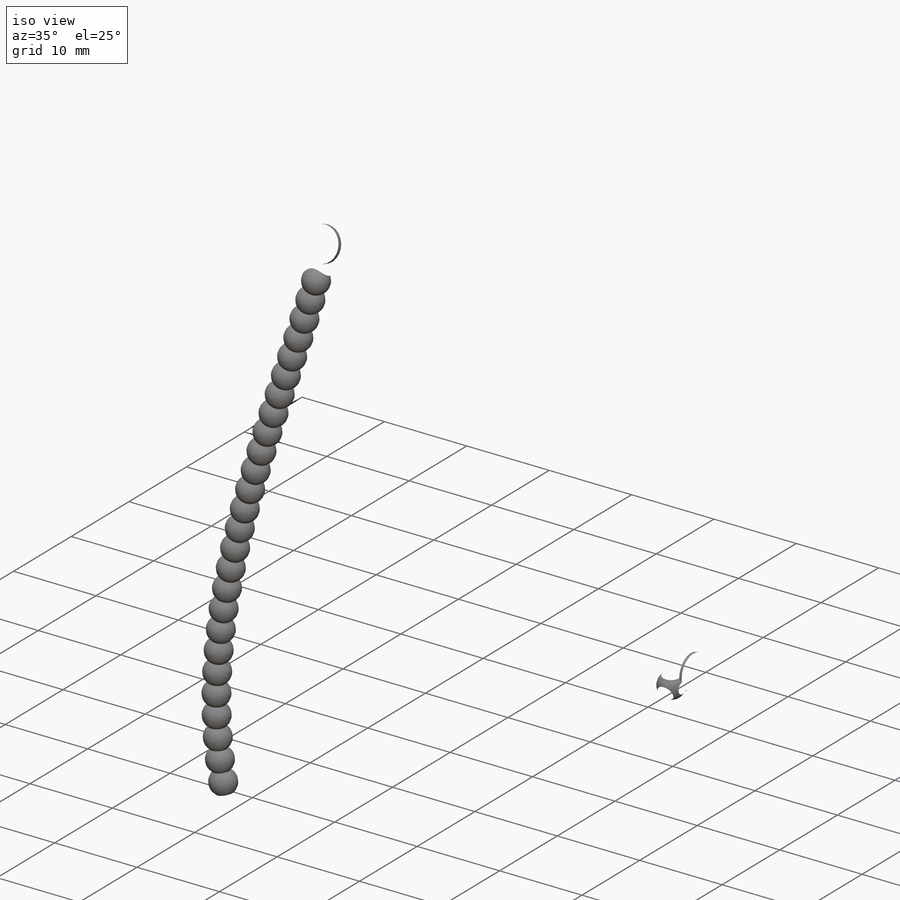
[diagram: iso view]
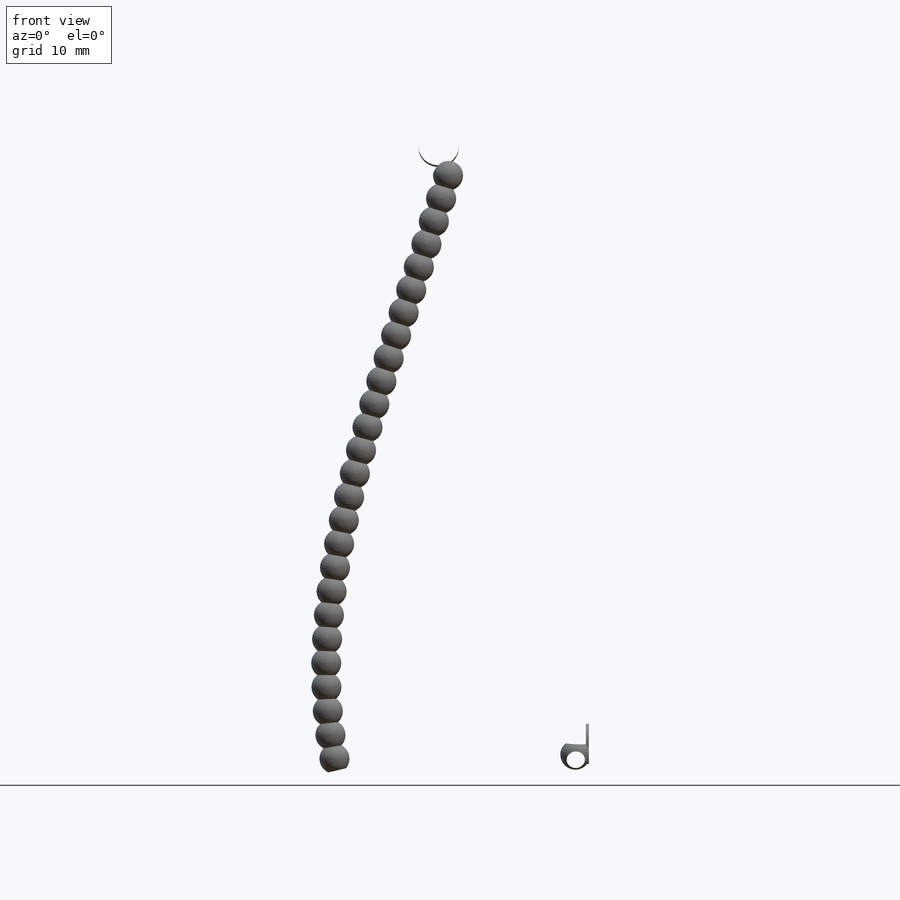
[diagram: front view]
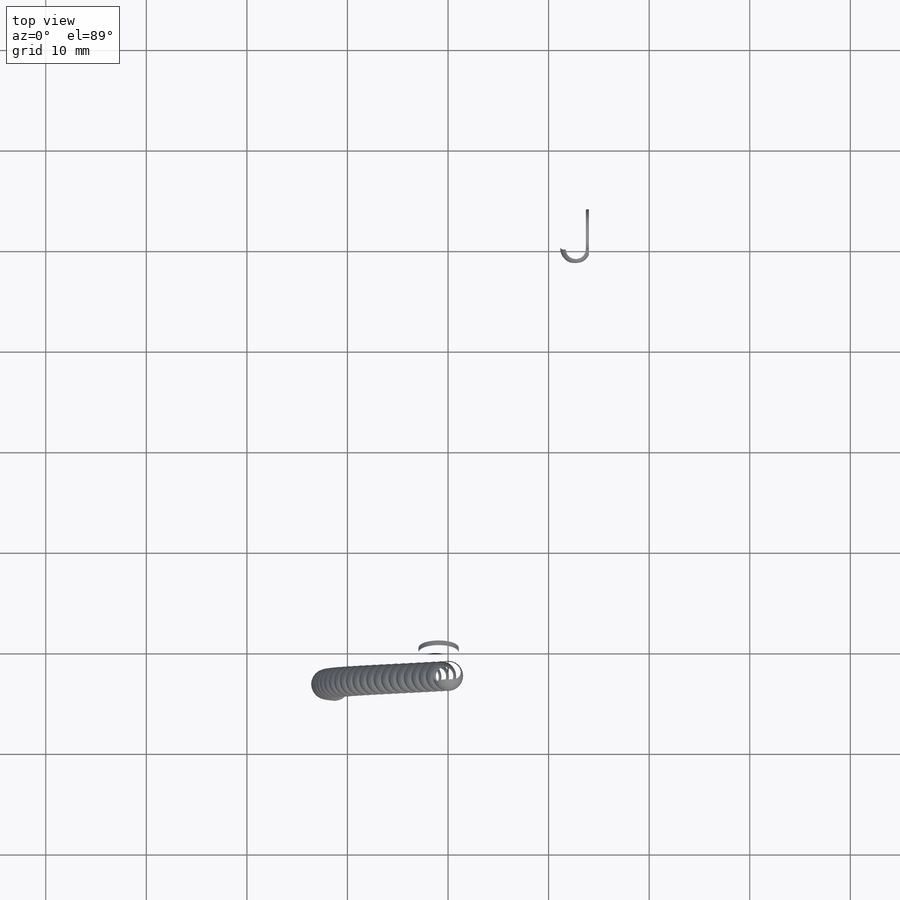
[diagram: top view]
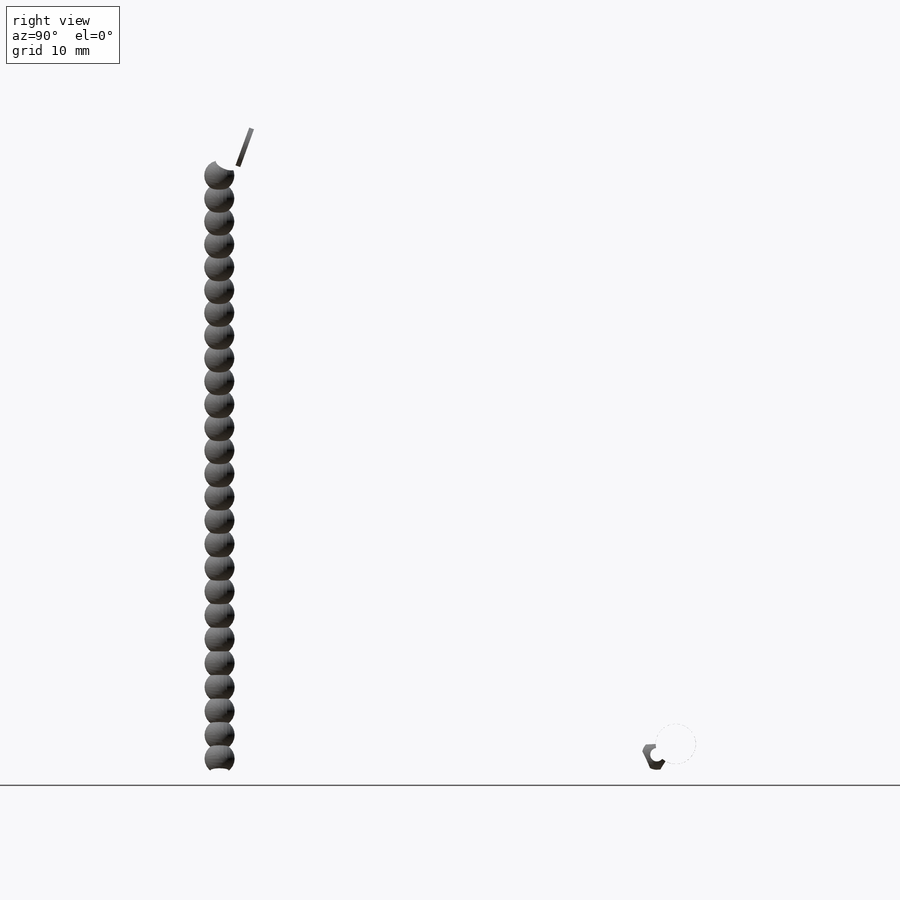
[diagram: right view]
SOLIDWORKS PART (.sldprt)
format: sldprt  version: not decoded by parser v0  size: 4,470,784 bytes
history: native  units: mm
features: sketch x28, extrude x14, pattern_circular x9, cut_extrude x6, plane x5, revolve x5, material x1, fillet x1, helix x1, sweep x1, chamfer x1 (+12 scaffold rows collapsed)
feature tree (84):
  scaffold x12  (default folders/planes/origin — collapsed)
  material  "Material <sin especificar>"
  plane  "Alzado"
  plane  "Planta"
  plane  "Vista lateral"
  sketch  "Croquis1"  dims[D1=4.765mm D2=300.0mm D3=13.25mm D4=40.0mm]
  revolve  "Revolución1"  Angle=360deg
  sketch  "Croquis2"
  extrude  "Saliente-Extruir1"  Depth=10mm
  sketch  "Croquis3"  dims[c1.D1=25.0mm c1.D2=25.0mm c1.D3=25.0mm c1.D4=15.0mm c2.D3=16.0mm c2.D5=80.0mm]
  revolve  "Revolución2"  Angle=360deg
  sketch  "Croquis4"  dims[c1.D1=80.0mm c2.D1=20.0deg]
  cut_extrude  "Cortar-Extruir1"  Depth=111mm
  sketch  "Croquis5"  dims[D1=94.0mm]
  extrude  "Saliente-Extruir2"  Depth=3mm
  sketch  "Croquis6"
  extrude  "Saliente-Extruir3"  Depth=1.5mm
  sketch  "Croquis7"
  extrude  "Saliente-Extruir4"  Depth=18mm
  fillet  "Redondeo1"  Radius=1.5mm
  sketch  "Croquis8"  dims[D1=92.4mm]
  cut_extrude  "Cortar-Extruir2"  Depth=4mm
  sketch  "Croquis9"  dims[c1.D1=~7.268934mm c1.D2=~6.254202mm c1.D3=~0.841122mm c2.D3=~8.213792deg c2.D4=~0.841122mm c3.D4=~4.106896deg c3.D1=6.5mm c3.D2=3.25mm]
  cut_extrude  "Cortar-Extruir3"  Depth=9mm
  pattern_circular  "MatrizC1"  Count=20 Angle=360deg
  sketch  "Croquis10"  dims[D1=0.0mm]
  extrude  "Saliente-Extruir5"  Depth=4mm
  pattern_circular  "Redondeo2"  [2 undecoded]
  sketch  "Croquis11"  dims[c1.D1=18.0mm c1.D2=~43.413799mm c2.D2=90.0deg c2.D3=46.2mm]
  revolve  "Revolución3"  Angle=360deg
  sketch  "Croquis12"  dims[D8=1.0mm D1=10.0mm D2=20.0mm D3=10.0mm D4=2.5mm D5=2.5mm D6=6.0mm D7=8.0mm]
  extrude  "Saliente-Extruir6"  Depth=42mm
  pattern_circular  "Redondeo4"  [2 undecoded]
  sketch  "Croquis13"  dims[D1=4.0mm]
  extrude  "Saliente-Extruir7"  Depth=3mm
  sketch  "Croquis14"
  extrude  "Saliente-Extruir8"  Depth=2.5mm
  pattern_circular  "Redondeo5"  [2 undecoded]
  sketch  "Croquis15"  dims[D1=0.0mm]
  helix  "Hélice/Espiral1"  Pitch=29.8mm
  sketch  "Croquis16"  dims[D1=1.49mm D2=0.2mm]
  sweep  "Cortar-Barrer1"
  sketch  "Croquis17"  dims[D1=11.0mm D2=1.0mm D3=20.0mm]
  revolve  "Revolución4"  Angle=360deg
  pattern_circular  "Redondeo6"  [2 undecoded]
  sketch  "Croquis18"  dims[D1=16.0mm D2=10.0mm]
  extrude  "Saliente-Extruir9"  Depth=3.5mm
  sketch  "Croquis19"  dims[D1=4.0mm]
  extrude  "Saliente-Extruir10"  Depth=14mm
  sketch  "Croquis20"
  extrude  "Saliente-Extruir11"  Depth=2.5mm
  pattern_circular  "Redondeo7"  [2 undecoded]
  sketch  "Croquis21"  dims[D1=7.5mm]
  extrude  "Saliente-Extruir12"  Depth=26mm
  chamfer  "Chaflán1"  Distance=0.5mm Angle=45deg
  sketch  "Croquis22"
  cut_extrude  "Cortar-Extruir4"  Depth=2.5mm
  sketch  "Croquis23"
  cut_extrude  "Cortar-Extruir5"  Depth=2.5mm
  sketch  "Croquis24"
  cut_extrude  "Cortar-Extruir6"  Depth=2.5mm
  sketch  "Croquis3D1"
  sketch  "Croquis25"  dims[D1=3.0mm]
  revolve  "Revolución5"  Angle=360deg
  plane  "Plano1"  Offset=1.5mm
  sketch  "Croquis27"
  extrude  "Saliente-Extruir13"  Depth=2mm
  pattern_circular  "Redondeo8"  [2 undecoded]
  plane  "Plano2"  Offset=1.3mm
  sketch  "Croquis28"
  extrude  "Saliente-Extruir14"  Depth=2mm
  pattern_circular  "Redondeo9"  [2 undecoded]
  pattern_circular  "Redondeo10"  [2 undecoded]
decode coverage: 46 of 66 modeling features carry decoded parameters
note: ~ marks probable driven/reference dimensions
note: 16 parameter values undecoded
note: suppression state not decoded; provenance and decode notes live in map.json
